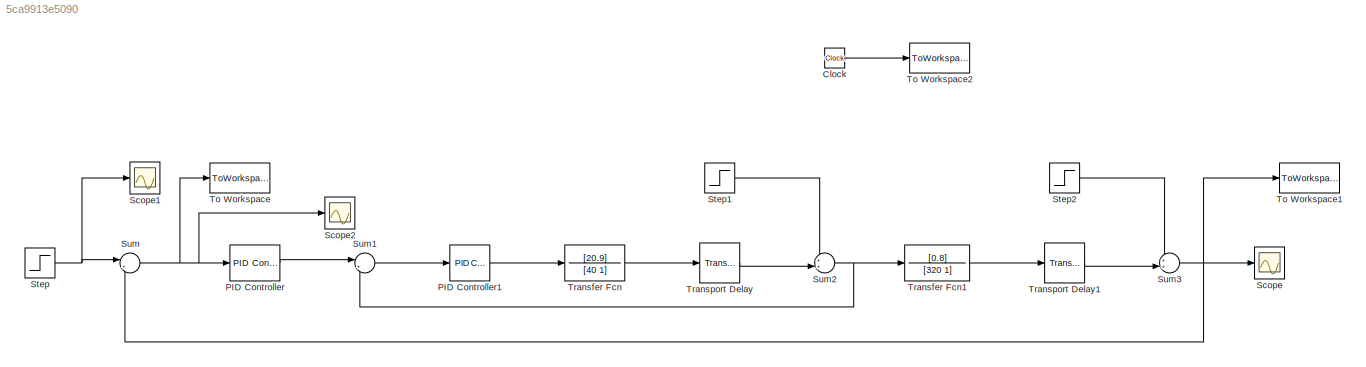
MODEL slx_5ca9913e5090
KIND model
CONFIG AbsTol = auto
CONFIG EnableMultiTasking = off
CONFIG FixedStep = auto
CONFIG MaxStep = auto
CONFIG MinStep = auto
CONFIG RelTol = 1e-3
CONFIG SampleTimeConstraint = Unconstrained
CONFIG SolverName = VariableStepAuto
CONFIG StartTime = 0.0
CONFIG StopTime = 2000
BLOCK [Clock] Clock
BLOCK [Reference] PID Controller  REF=pid_lib/PID Controller
  Ports = [1, 1]
  SourceBlock = pid_lib/PID Controller
  SourceProductBaseCode = SL
  SourceType = PID 1dof
BLOCK [Reference] PID Controller1  REF=pid_lib/PID Controller
  Ports = [1, 1]
  SourceBlock = pid_lib/PID Controller
  SourceProductBaseCode = SL
  SourceType = PID 1dof
BLOCK [Scope] Scope
  Floating = off
  NumInputPorts = 1
  Ports = [1]
  ScopeSpecificationString = Simulink.scopes.TimeScopeBlockCfg('CurrentConfiguration', extmgr.ConfigurationSet(extmgr.Configuration('Core','General UI',true),extmgr.Configuration('Core','Source UI',true),extmgr.Configuration('Sources','WiredSimulink',true),extmgr.Configuration('Visuals','Time Domain',true,'SerializedDisplays',{struct('MinYLimReal','12.60515','MaxYLimReal','26.55365','YLabelReal','','MinYLimMag','12.60515','Ma...<+1633ch>
BLOCK [Scope] Scope1
  Floating = off
  NumInputPorts = 1
  Ports = [1]
  ScopeSpecificationString = Simulink.scopes.TimeScopeBlockCfg('CurrentConfiguration', extmgr.ConfigurationSet(extmgr.Configuration('Core','General UI',true),extmgr.Configuration('Core','Source UI',true),extmgr.Configuration('Sources','WiredSimulink',true,'DataLoggingVariableName','ScopeData1'),extmgr.Configuration('Visuals','Time Domain',true,'SerializedDisplays',{struct('MinYLimReal','12.75','MaxYLimReal','25.25','YLabelRea...<+1374ch>
BLOCK [Scope] Scope2
  Floating = off
  NumInputPorts = 1
  Ports = [1]
  ScopeSpecificationString = Simulink.scopes.TimeScopeBlockCfg('CurrentConfiguration', extmgr.ConfigurationSet(extmgr.Configuration('Core','General UI',true),extmgr.Configuration('Core','Source UI',true),extmgr.Configuration('Sources','WiredSimulink',true,'DataLoggingVariableName','ScopeData1'),extmgr.Configuration('Visuals','Time Domain',true,'SerializedDisplays',{struct('MinYLimReal','-3.9993','MaxYLimReal','17.72521','YLab...<+1463ch>
BLOCK [Step] Step
  After = 24
  Before = 14
  SampleTime = 0
  Time = 100
BLOCK [Step] Step1
  After = 0
  SampleTime = 0
  Time = 0
BLOCK [Step] Step2
  After = 14
  Before = 14
  SampleTime = 0
  Time = 0
BLOCK [Sum] Sum
  Inputs = |+-
  Ports = [2, 1]
BLOCK [Sum] Sum1
  Inputs = |+-
  Ports = [2, 1]
BLOCK [Sum] Sum2
  Inputs = ++|
  Ports = [2, 1]
BLOCK [Sum] Sum3
  Inputs = ++|
  Ports = [2, 1]
BLOCK [ToWorkspace] To Workspace
  FixptAsFi = on
  MaxDataPoints = inf
  Ports = [1]
  SampleTime = -1
  SaveFormat = Timeseries
  VariableName = e_out
BLOCK [ToWorkspace] To Workspace1
  FixptAsFi = on
  MaxDataPoints = inf
  Ports = [1]
  SampleTime = -1
  SaveFormat = Timeseries
  VariableName = y_out
BLOCK [ToWorkspace] To Workspace2
  FixptAsFi = on
  MaxDataPoints = inf
  Ports = [1]
  SampleTime = -1
  SaveFormat = Timeseries
  VariableName = t_out
BLOCK [TransferFcn] Transfer Fcn
  Denominator = [40 1]
  Numerator = [20.9]
BLOCK [TransferFcn] Transfer Fcn1
  Denominator = [320 1]
  Numerator = [0.8]
BLOCK [TransportDelay] Transport Delay
  BufferSize = 2048
  DelayTime = 3
  Ports = [1, 1]
BLOCK [TransportDelay] Transport Delay1
  BufferSize = 2048
  DelayTime = 32
  Ports = [1, 1]
LINE Clock:1 -> To Workspace2:1
LINE PID Controller1:1 -> Transfer Fcn:1
LINE PID Controller:1 -> Sum1:1
LINE Step1:1 -> Sum2:1
LINE Step2:1 -> Sum3:1
NET Step:1 -> Scope1:1, Sum:1
LINE Sum1:1 -> PID Controller1:1
NET Sum2:1 -> Sum1:2, Transfer Fcn1:1
NET Sum3:1 -> Scope:1, Sum:2, To Workspace1:1
NET Sum:1 -> PID Controller:1, Scope2:1, To Workspace:1
LINE Transfer Fcn1:1 -> Transport Delay1:1
LINE Transfer Fcn:1 -> Transport Delay:1
LINE Transport Delay1:1 -> Sum3:2
LINE Transport Delay:1 -> Sum2:2
note: NET lines group one-source signal fan-out (src -> all destinations, sorted); 1:1 wires keep LINE
